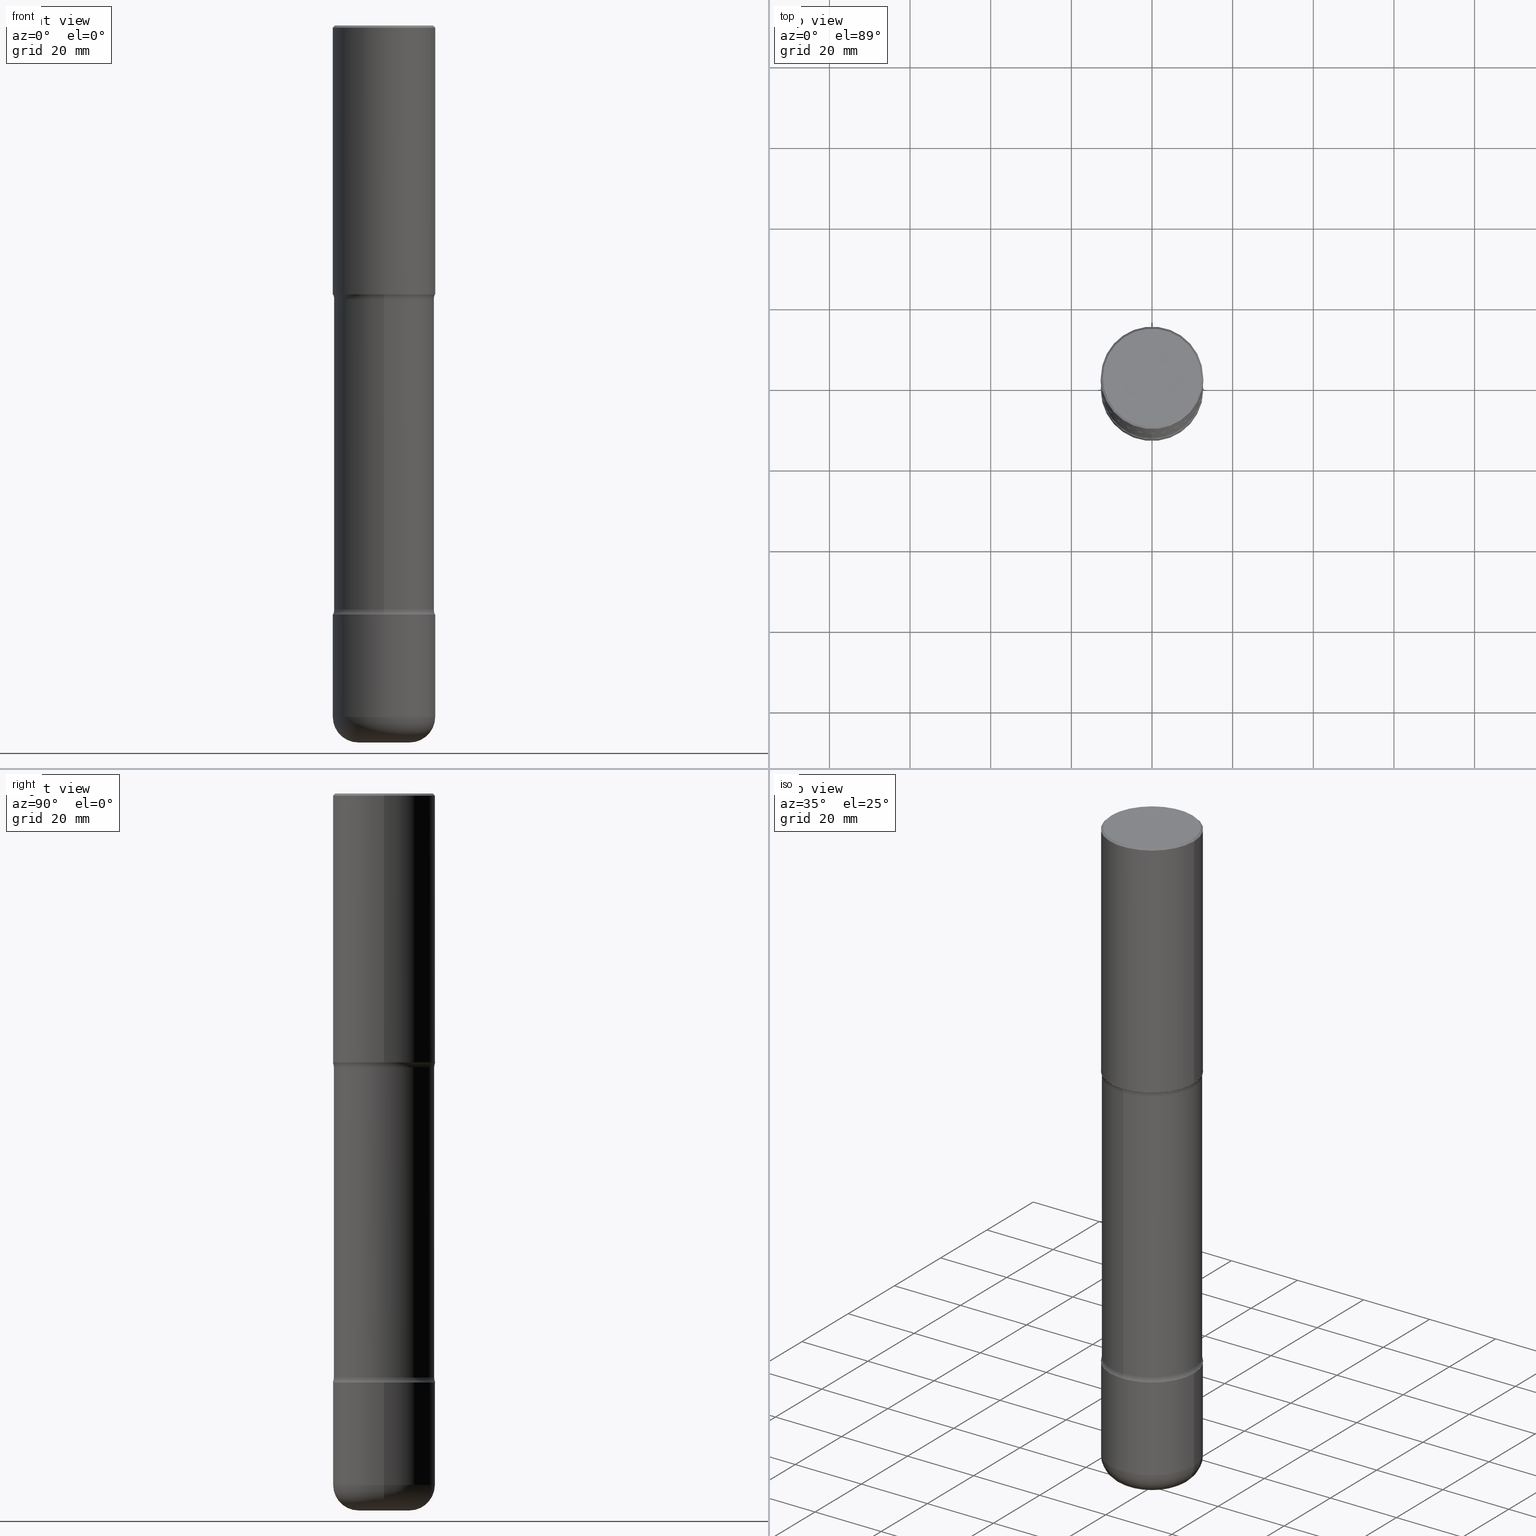
[diagram: canonical four-view strip — front | top / right | iso, engineering-drawing reading convention]
A machine part, canonical four-view strip (front | top / right | iso — engineering-drawing reading convention). The complete STEP part file that produces these views, byte-faithful:
ISO-10303-21;
HEADER;
FILE_DESCRIPTION (( 'STEP AP203' ),
    '1' );
FILE_NAME ('35818.STEP',
    '2024-03-01T23:35:28',
    ( '' ),
    ( '' ),
    'SwSTEP 2.0',
    'SolidWorks 2023',
    '' );
FILE_SCHEMA (( 'CONFIG_CONTROL_DESIGN' ));
ENDSEC;

DATA;
#1 = VERTEX_POINT ( 'NONE', #482 ) ;
#2 = CIRCLE ( 'NONE', #331, 0.1250000000000000278 ) ;
#3 = AXIS2_PLACEMENT_3D ( 'NONE', #88, #348, #85 ) ;
#4 = SHAPE_DEFINITION_REPRESENTATION ( #188, #206 ) ;
#5 = CARTESIAN_POINT ( 'NONE',  ( 1.711828164329595842E-28, -2.444036937190202499E-14, -7.000000000000001776 ) ) ;
#6 = EDGE_LOOP ( 'NONE', ( #405, #224, #31, #177 ) ) ;
#7 = DIRECTION ( 'NONE',  ( -2.445468806185136597E-29, 3.491481338843145583E-15, 1.000000000000000000 ) ) ;
#8 = EDGE_CURVE ( 'NONE', #248, #485, #484, .T. ) ;
#9 = DATE_AND_TIME ( #323, #413 ) ;
#10 = AXIS2_PLACEMENT_3D ( 'NONE', #498, #491, #451 ) ;
#11 = CIRCLE ( 'NONE', #478, 0.1250000000000000278 ) ;
#12 = CARTESIAN_POINT ( 'NONE',  ( -4.219206268629429970E-15, -0.6150000000000099831, -2.673989794855662794 ) ) ;
#13 = ADVANCED_FACE ( 'NONE', ( #445 ), #271, .T. ) ;
#14 = DIRECTION ( 'NONE',  ( -2.445468806185136597E-29, 3.491481338843145583E-15, 1.000000000000000000 ) ) ;
#15 = FACE_OUTER_BOUND ( 'NONE', #205, .T. ) ;
#16 = MANIFOLD_SOLID_BREP ( 'Body-Move/Copy2[4]', #28 ) ;
#17 = AXIS2_PLACEMENT_3D ( 'NONE', #311, #395, #480 ) ;
#18 = EDGE_CURVE ( 'NONE', #363, #181, #527, .T. ) ;
#19 = DIRECTION ( 'NONE',  ( 6.982962677686266711E-15, 1.000000000000000000, -4.460159989655937807E-15 ) ) ;
#20 = CARTESIAN_POINT ( 'NONE',  ( 3.491481338843199225E-15, 0.4999999999999911182, -2.625000000000001776 ) ) ;
#21 = ADVANCED_FACE ( 'NONE', ( #185 ), #231, .T. ) ;
#22 = ORIENTED_EDGE ( 'NONE', *, *, #298, .T. ) ;
#23 = CARTESIAN_POINT ( 'NONE',  ( 0.000000000000000000, 0.000000000000000000, 0.000000000000000000 ) ) ;
#24 = DIRECTION ( 'NONE',  ( -2.445468806185136877E-29, 3.491481338843145188E-15, 1.000000000000000000 ) ) ;
#25 = ORIENTED_EDGE ( 'NONE', *, *, #63, .F. ) ;
#26 = ORIENTED_EDGE ( 'NONE', *, *, #91, .T. ) ;
#27 = CIRCLE ( 'NONE', #42, 0.5000000000000004441 ) ;
#28 = CLOSED_SHELL ( 'NONE', ( #64, #483, #165, #522, #135, #54, #313, #55 ) ) ;
#29 = DIRECTION ( 'NONE',  ( 7.105427357601001859E-15, 1.000000000000000000, -3.491481338843145583E-15 ) ) ;
#30 = AXIS2_PLACEMENT_3D ( 'NONE', #168, #310, #300 ) ;
#31 = ORIENTED_EDGE ( 'NONE', *, *, #157, .F. ) ;
#32 = FACE_OUTER_BOUND ( 'NONE', #399, .T. ) ;
#33 = DIRECTION ( 'NONE',  ( -2.445468806185136877E-29, 3.491481338843145188E-15, 1.000000000000000000 ) ) ;
#34 = VERTEX_POINT ( 'NONE', #447 ) ;
#35 = PERSON_AND_ORGANIZATION_ROLE ( 'creator' ) ;
#36 = CARTESIAN_POINT ( 'NONE',  ( 0.5000000000000006661, -2.705898037603436870E-14, -6.750000000000000888 ) ) ;
#37 = EDGE_LOOP ( 'NONE', ( #250, #422, #431, #142 ) ) ;
#38 = ORIENTED_EDGE ( 'NONE', *, *, #277, .F. ) ;
#39 = PERSON_AND_ORGANIZATION ( #553, #386 ) ;
#40 = DIRECTION ( 'NONE',  ( 1.000000000000000000, -6.982962677686267499E-15, 0.000000000000000000 ) ) ;
#41 = DIRECTION ( 'NONE',  ( 2.521774376508615199E-29, -3.382207419096575054E-15, -1.000000000000000000 ) ) ;
#42 = AXIS2_PLACEMENT_3D ( 'NONE', #113, #152, #456 ) ;
#43 = ORIENTED_EDGE ( 'NONE', *, *, #126, .F. ) ;
#44 = TOROIDAL_SURFACE ( 'NONE', #426, 0.6150000000000003242, 0.1250000000000000555 ) ;
#45 = CYLINDRICAL_SURFACE ( 'NONE', #360, 0.5000000000000002220 ) ;
#46 = VERTEX_POINT ( 'NONE', #99 ) ;
#47 = CARTESIAN_POINT ( 'NONE',  ( 0.2500000000000005551, -2.531323970661280518E-14, -6.750000000000000888 ) ) ;
#48 = CARTESIAN_POINT ( 'NONE',  ( 0.000000000000000000, 0.000000000000000000, 0.000000000000000000 ) ) ;
#49 = EDGE_CURVE ( 'NONE', #181, #363, #183, .T. ) ;
#50 = VERTEX_POINT ( 'NONE', #134 ) ;
#51 = AXIS2_PLACEMENT_3D ( 'NONE', #106, #234, #455 ) ;
#52 = AXIS2_PLACEMENT_3D ( 'NONE', #520, #262, #444 ) ;
#53 = CARTESIAN_POINT ( 'NONE',  ( 1.711828164329595842E-28, -2.444036937190202499E-14, -7.000000000000001776 ) ) ;
#54 = ADVANCED_FACE ( 'NONE', ( #312 ), #285, .F. ) ;
#55 = ADVANCED_FACE ( 'NONE', ( #56 ), #417, .T. ) ;
#56 = FACE_OUTER_BOUND ( 'NONE', #380, .T. ) ;
#57 = APPROVAL_STATUS ( 'not_yet_approved' ) ;
#58 = CYLINDRICAL_SURFACE ( 'NONE', #145, 0.5000000000000004441 ) ;
#59 = COORDINATED_UNIVERSAL_TIME_OFFSET ( 5, 0, .BEHIND. ) ;
#60 = CIRCLE ( 'NONE', #273, 0.1249999999999999584 ) ;
#61 = CIRCLE ( 'NONE', #352, 0.5000000000000004441 ) ;
#62 = CARTESIAN_POINT ( 'NONE',  ( -0.5000000000000006661, -2.001478535839073126E-14, -6.750000000000000888 ) ) ;
#63 = EDGE_CURVE ( 'NONE', #50, #216, #332, .T. ) ;
#64 = ADVANCED_FACE ( 'NONE', ( #102 ), #199, .T. ) ;
#65 = ORIENTED_EDGE ( 'NONE', *, *, #410, .F. ) ;
#66 = PERSON_AND_ORGANIZATION ( #553, #386 ) ;
#67 = DIRECTION ( 'NONE',  ( 1.000000000000000000, -6.982962677686265133E-15, 4.883557194083112340E-29 ) ) ;
#68 = CC_DESIGN_PERSON_AND_ORGANIZATION_ASSIGNMENT ( #393, #259, ( #327 ) ) ;
#69 = DIRECTION ( 'NONE',  ( 6.982962677686265922E-15, 1.000000000000000000, -3.382207419096575054E-15 ) ) ;
#70 = AXIS2_PLACEMENT_3D ( 'NONE', #189, #143, #528 ) ;
#71 = CIRCLE ( 'NONE', #30, 0.5000000000000000000 ) ;
#72 = DIRECTION ( 'NONE',  ( -1.000000000000000000, 7.105427357601000281E-15, 0.000000000000000000 ) ) ;
#73 = ADVANCED_FACE ( 'NONE', ( #15 ), #227, .T. ) ;
#74 = DIRECTION ( 'NONE',  ( 1.000000000000000000, -6.982962677686265133E-15, 4.883557194083112340E-29 ) ) ;
#75 = EDGE_CURVE ( 'NONE', #201, #295, #238, .T. ) ;
#76 = ORIENTED_EDGE ( 'NONE', *, *, #261, .T. ) ;
#77 = COORDINATED_UNIVERSAL_TIME_OFFSET ( 5, 0, .BEHIND. ) ;
#78 = CARTESIAN_POINT ( 'NONE',  ( -0.5000000000000000000, 3.421651712066270057E-15, -0.02000000000000010797 ) ) ;
#79 = VERTEX_POINT ( 'NONE', #62 ) ;
#80 = ORIENTED_EDGE ( 'NONE', *, *, #63, .T. ) ;
#81 = APPROVAL_STATUS ( 'not_yet_approved' ) ;
#82 = AXIS2_PLACEMENT_3D ( 'NONE', #548, #394, #291 ) ;
#83 = CARTESIAN_POINT ( 'NONE',  ( 3.421651712066335533E-15, 0.4899999999999906097, -2.673989794855666347 ) ) ;
#84 = ORIENTED_EDGE ( 'NONE', *, *, #75, .T. ) ;
#85 = DIRECTION ( 'NONE',  ( 6.982962677686266711E-15, 1.000000000000000000, -4.460159989655937807E-15 ) ) ;
#86 = CARTESIAN_POINT ( 'NONE',  ( -0.2500000000000005551, -2.179114219779098172E-14, -6.750000000000000888 ) ) ;
#87 = ORIENTED_EDGE ( 'NONE', *, *, #371, .F. ) ;
#88 = CARTESIAN_POINT ( 'NONE',  ( 1.393790442618711164E-28, -1.991032405072724823E-14, -5.701010205144338094 ) ) ;
#89 = DIRECTION ( 'NONE',  ( 1.000000000000000000, -6.982962677686264344E-15, 0.000000000000000000 ) ) ;
#90 = EDGE_LOOP ( 'NONE', ( #526, #521, #322, #25 ) ) ;
#91 = EDGE_CURVE ( 'NONE', #325, #263, #161, .T. ) ;
#92 = FACE_OUTER_BOUND ( 'NONE', #324, .T. ) ;
#93 = VERTEX_POINT ( 'NONE', #232 ) ;
#94 = ORIENTED_EDGE ( 'NONE', *, *, #147, .T. ) ;
#95 = CARTESIAN_POINT ( 'NONE',  ( 1.406144563556453992E-28, -2.007601769834809568E-14, -5.750000000000001776 ) ) ;
#96 = ORIENTED_EDGE ( 'NONE', *, *, #226, .T. ) ;
#97 = ORIENTED_EDGE ( 'NONE', *, *, #298, .F. ) ;
#98 = EDGE_CURVE ( 'NONE', #46, #1, #128, .T. ) ;
#99 = CARTESIAN_POINT ( 'NONE',  ( -0.5000000000000004441, -1.064770391819553504E-15, -2.625000000000000000 ) ) ;
#100 = AXIS2_PLACEMENT_3D ( 'NONE', #104, #286, #278 ) ;
#101 = CONICAL_SURFACE ( 'NONE', #17, 0.5000000000000000000, 0.7853981633974467247 ) ;
#102 = FACE_OUTER_BOUND ( 'NONE', #37, .T. ) ;
#103 = DATE_TIME_ROLE ( 'classification_date' ) ;
#104 = CARTESIAN_POINT ( 'NONE',  ( -4.175405657340879278E-46, 5.961372681521788801E-32, 1.707404996040164512E-17 ) ) ;
#105 = DATE_AND_TIME ( #552, #140 ) ;
#106 = CARTESIAN_POINT ( 'NONE',  ( 1.721366360620030576E-28, -2.430377697221880819E-14, -7.000000000000000888 ) ) ;
#107 = AXIS2_PLACEMENT_3D ( 'NONE', #155, #336, #329 ) ;
#108 = ORIENTED_EDGE ( 'NONE', *, *, #8, .F. ) ;
#109 = DATE_AND_TIME ( #246, #440 ) ;
#110 = VECTOR ( 'NONE', #245, 39.37007874015748143 ) ;
#111 = DIRECTION ( 'NONE',  ( 6.860497997771532351E-15, 1.000000000000000000, 0.000000000000000000 ) ) ;
#112 = EDGE_CURVE ( 'NONE', #1, #46, #27, .T. ) ;
#113 = CARTESIAN_POINT ( 'NONE',  ( 6.419355616235983567E-29, -9.165138514463256612E-15, -2.625000000000000000 ) ) ;
#114 = CARTESIAN_POINT ( 'NONE',  ( 4.294522046777194602E-15, 0.6149999999999803402, -5.701010205144339871 ) ) ;
#115 = DIRECTION ( 'NONE',  ( 6.982962677686265922E-15, 1.000000000000000000, -3.382207419096575054E-15 ) ) ;
#116 = EDGE_CURVE ( 'NONE', #304, #402, #545, .T. ) ;
#117 = SECURITY_CLASSIFICATION ( '', '', #436 ) ;
#118 = DIRECTION ( 'NONE',  ( 6.982962677686265922E-15, 1.000000000000000000, -3.382207419096575054E-15 ) ) ;
#119 = ORIENTED_EDGE ( 'NONE', *, *, #122, .F. ) ;
#120 = CC_DESIGN_PERSON_AND_ORGANIZATION_ASSIGNMENT ( #39, #187, ( #117 ) ) ;
#121 = DIRECTION ( 'NONE',  ( 6.982962677686266711E-15, 1.000000000000000000, -4.460159989655937807E-15 ) ) ;
#122 = EDGE_CURVE ( 'NONE', #248, #201, #495, .T. ) ;
#123 = CARTESIAN_POINT ( 'NONE',  ( 0.5000000000000004441, -2.356749903719122903E-14, -5.750000000000001776 ) ) ;
#124 = CARTESIAN_POINT ( 'NONE',  ( 4.890937612370299433E-31, -6.982962677686328587E-17, -0.02000000000000010797 ) ) ;
#125 = PLANE ( 'NONE',  #427 ) ;
#126 = EDGE_CURVE ( 'NONE', #50, #93, #501, .T. ) ;
#127 = ORIENTED_EDGE ( 'NONE', *, *, #49, .F. ) ;
#128 = CIRCLE ( 'NONE', #281, 0.5000000000000004441 ) ;
#129 = DIRECTION ( 'NONE',  ( 6.982962677686266711E-15, 1.000000000000000000, -4.370956789862817205E-15 ) ) ;
#130 = ORIENTED_EDGE ( 'NONE', *, *, #261, .F. ) ;
#131 = ADVANCED_FACE ( 'NONE', ( #531 ), #58, .T. ) ;
#132 =( NAMED_UNIT ( * ) SI_UNIT ( $, .STERADIAN. ) SOLID_ANGLE_UNIT ( ) );
#133 = DIRECTION ( 'NONE',  ( 1.000000000000000000, -6.982962677686267499E-15, 4.876176775795936353E-29 ) ) ;
#134 = CARTESIAN_POINT ( 'NONE',  ( -0.4799999999999999267, 3.386736898677838802E-15, 1.707404996037808406E-17 ) ) ;
#135 = ADVANCED_FACE ( 'NONE', ( #194 ), #330, .F. ) ;
#136 = CARTESIAN_POINT ( 'NONE',  ( 4.890937612370299433E-31, -6.982962677686328587E-17, -0.02000000000000010797 ) ) ;
#137 = ORIENTED_EDGE ( 'NONE', *, *, #292, .T. ) ;
#138 = DIRECTION ( 'NONE',  ( -1.000000000000000000, 6.982962677686265922E-15, -4.876176775795935793E-29 ) ) ;
#139 = ORIENTED_EDGE ( 'NONE', *, *, #160, .T. ) ;
#140 = LOCAL_TIME ( 18, 35, 28.00000000000000000, #428 ) ;
#141 = CALENDAR_DATE ( 2024, 1, 3 ) ;
#142 = ORIENTED_EDGE ( 'NONE', *, *, #75, .F. ) ;
#143 = DIRECTION ( 'NONE',  ( -2.445468806185136597E-29, 3.491481338843145583E-15, 1.000000000000000000 ) ) ;
#144 = CARTESIAN_POINT ( 'NONE',  ( 0.000000000000000000, 0.000000000000000000, 0.000000000000000000 ) ) ;
#145 = AXIS2_PLACEMENT_3D ( 'NONE', #144, #149, #192 ) ;
#146 = VECTOR ( 'NONE', #502, 39.37007874015748143 ) ;
#147 = EDGE_CURVE ( 'NONE', #34, #471, #341, .T. ) ;
#148 = DIRECTION ( 'NONE',  ( 1.000000000000000000, -6.982962677686264344E-15, 0.000000000000000000 ) ) ;
#149 = DIRECTION ( 'NONE',  ( -2.445468806185136597E-29, 3.491481338843145583E-15, 1.000000000000000000 ) ) ;
#150 = ORIENTED_EDGE ( 'NONE', *, *, #345, .T. ) ;
#151 = EDGE_CURVE ( 'NONE', #248, #402, #2, .T. ) ;
#152 = DIRECTION ( 'NONE',  ( -2.445468806185136597E-29, 3.491481338843145583E-15, 1.000000000000000000 ) ) ;
#153 = AXIS2_PLACEMENT_3D ( 'NONE', #247, #425, #118 ) ;
#154 = AXIS2_PLACEMENT_3D ( 'NONE', #314, #180, #138 ) ;
#155 = CARTESIAN_POINT ( 'NONE',  ( 6.180900708975112969E-29, -9.506619513671289169E-15, -2.625000000000000000 ) ) ;
#156 = DIRECTION ( 'NONE',  ( -2.445468806185136597E-29, 3.491481338843145583E-15, 1.000000000000000000 ) ) ;
#157 = EDGE_CURVE ( 'NONE', #508, #79, #197, .T. ) ;
#158 = FACE_OUTER_BOUND ( 'NONE', #90, .T. ) ;
#159 = DIRECTION ( 'NONE',  ( 2.438088387897960049E-29, -3.491481338843145188E-15, -1.000000000000000000 ) ) ;
#160 = EDGE_CURVE ( 'NONE', #46, #216, #433, .T. ) ;
#161 = CIRCLE ( 'NONE', #350, 0.5000000000000004441 ) ;
#162 = CIRCLE ( 'NONE', #209, 0.5000000000000004441 ) ;
#163 = CARTESIAN_POINT ( 'NONE',  ( 0.2500000000000005551, -2.618611004132359483E-14, -7.000000000000001776 ) ) ;
#164 = PERSON_AND_ORGANIZATION ( #553, #386 ) ;
#165 = ADVANCED_FACE ( 'NONE', ( #204 ), #516, .F. ) ;
#166 = DIRECTION ( 'NONE',  ( -2.445468806185136597E-29, 3.491481338843145583E-15, 1.000000000000000000 ) ) ;
#167 = ORIENTED_EDGE ( 'NONE', *, *, #112, .F. ) ;
#168 = CARTESIAN_POINT ( 'NONE',  ( 4.890937612370299433E-31, -6.982962677686328587E-17, -0.02000000000000010797 ) ) ;
#169 = CC_DESIGN_DATE_AND_TIME_ASSIGNMENT ( #236, #240, ( #510 ) ) ;
#170 = DIRECTION ( 'NONE',  ( 1.000000000000000000, -6.982962677686266711E-15, 4.876431871984414276E-29 ) ) ;
#171 = ORIENTED_EDGE ( 'NONE', *, *, #157, .T. ) ;
#172 = CARTESIAN_POINT ( 'NONE',  ( 6.300703724116049191E-29, -9.677666468203598037E-15, -2.673989794855665014 ) ) ;
#173 = AXIS2_PLACEMENT_3D ( 'NONE', #86, #29, #72 ) ;
#174 = APPROVAL_PERSON_ORGANIZATION ( #164, #239, #252 ) ;
#175 = DIRECTION ( 'NONE',  ( 1.000000000000000000, -6.982962677686266711E-15, 0.000000000000000000 ) ) ;
#176 = CARTESIAN_POINT ( 'NONE',  ( -3.430248998885628125E-15, -0.5000000000000204281, -5.750000000000000000 ) ) ;
#177 = ORIENTED_EDGE ( 'NONE', *, *, #472, .F. ) ;
#178 = EDGE_CURVE ( 'NONE', #34, #295, #60, .T. ) ;
#179 = EDGE_CURVE ( 'NONE', #363, #79, #418, .T. ) ;
#180 = DIRECTION ( 'NONE',  ( 2.438088387897960049E-29, -3.491481338843145188E-15, -1.000000000000000000 ) ) ;
#181 = VERTEX_POINT ( 'NONE', #163 ) ;
#182 = ORIENTED_EDGE ( 'NONE', *, *, #147, .F. ) ;
#183 = CIRCLE ( 'NONE', #477, 0.2500000000000005551 ) ;
#184 = AXIS2_PLACEMENT_3D ( 'NONE', #509, #514, #500 ) ;
#185 = FACE_OUTER_BOUND ( 'NONE', #474, .T. ) ;
#186 = DIMENSIONAL_EXPONENTS ( 1.000000000000000000, 0.000000000000000000, 0.000000000000000000, 0.000000000000000000, 0.000000000000000000, 0.000000000000000000, 0.000000000000000000 ) ;
#187 = PERSON_AND_ORGANIZATION_ROLE ( 'classification_officer' ) ;
#188 = PRODUCT_DEFINITION_SHAPE ( 'NONE', 'NONE',  #510 ) ;
#189 = CARTESIAN_POINT ( 'NONE',  ( 0.000000000000000000, 0.000000000000000000, 0.000000000000000000 ) ) ;
#190 = ORIENTED_EDGE ( 'NONE', *, *, #249, .T. ) ;
#191 = LOCAL_TIME ( 18, 35, 28.00000000000000000, #490 ) ;
#192 = DIRECTION ( 'NONE',  ( 1.000000000000000000, -6.982962677686266711E-15, 4.876176775795935232E-29 ) ) ;
#193 = EDGE_CURVE ( 'NONE', #471, #485, #487, .T. ) ;
#194 = FACE_OUTER_BOUND ( 'NONE', #529, .T. ) ;
#195 = ADVANCED_FACE ( 'NONE', ( #337 ), #242, .T. ) ;
#196 = DIRECTION ( 'NONE',  ( 2.521774376508615199E-29, -3.382207419096575054E-15, -1.000000000000000000 ) ) ;
#197 = CIRCLE ( 'NONE', #404, 0.5000000000000004441 ) ;
#198 = AXIS2_PLACEMENT_3D ( 'NONE', #349, #156, #294 ) ;
#199 = CYLINDRICAL_SURFACE ( 'NONE', #51, 0.4900000000000002132 ) ;
#200 = FACE_OUTER_BOUND ( 'NONE', #340, .T. ) ;
#201 = VERTEX_POINT ( 'NONE', #83 ) ;
#202 = DIRECTION ( 'NONE',  ( 0.000000000000000000, 0.000000000000000000, 1.000000000000000000 ) ) ;
#203 = MANIFOLD_SOLID_BREP ( 'Body-Move/Copy2[2]', #452 ) ;
#204 = FACE_OUTER_BOUND ( 'NONE', #513, .T. ) ;
#205 = EDGE_LOOP ( 'NONE', ( #334, #443, #463, #385 ) ) ;
#206 = ADVANCED_BREP_SHAPE_REPRESENTATION ( '35818', ( #392, #203, #16, #466 ), #374 ) ;
#207 = PERSON_AND_ORGANIZATION ( #553, #386 ) ;
#208 = CLOSED_SHELL ( 'NONE', ( #13, #195, #222, #73, #131, #467 ) ) ;
#209 = AXIS2_PLACEMENT_3D ( 'NONE', #95, #269, #89 ) ;
#210 = FACE_OUTER_BOUND ( 'NONE', #347, .T. ) ;
#211 = PRODUCT_RELATED_PRODUCT_CATEGORY ( 'detail', '', ( #408 ) ) ;
#212 = DIRECTION ( 'NONE',  ( 1.000000000000000000, 0.000000000000000000, 0.000000000000000000 ) ) ;
#213 = LINE ( 'NONE', #377, #110 ) ;
#214 = PLANE ( 'NONE',  #52 ) ;
#215 = EDGE_LOOP ( 'NONE', ( #504, #137, #22, #435 ) ) ;
#216 = VERTEX_POINT ( 'NONE', #78 ) ;
#217 = DIRECTION ( 'NONE',  ( -1.000000000000000000, 6.982962677686266711E-15, 0.000000000000000000 ) ) ;
#218 = CC_DESIGN_PERSON_AND_ORGANIZATION_ASSIGNMENT ( #400, #492, ( #510 ) ) ;
#219 = VECTOR ( 'NONE', #511, 39.37007874015748143 ) ;
#220 = FACE_OUTER_BOUND ( 'NONE', #551, .T. ) ;
#221 = ORIENTED_EDGE ( 'NONE', *, *, #272, .F. ) ;
#222 = ADVANCED_FACE ( 'NONE', ( #210 ), #389, .T. ) ;
#223 = FACE_OUTER_BOUND ( 'NONE', #505, .T. ) ;
#224 = ORIENTED_EDGE ( 'NONE', *, *, #179, .T. ) ;
#225 = DIRECTION ( 'NONE',  ( 1.000000000000000000, -6.982962677686266711E-15, 4.876176775795935232E-29 ) ) ;
#226 = EDGE_CURVE ( 'NONE', #79, #325, #549, .T. ) ;
#227 = TOROIDAL_SURFACE ( 'NONE', #372, 0.2500000000000005551, 0.2500000000000003331 ) ;
#228 = TOROIDAL_SURFACE ( 'NONE', #519, 0.6150000000000003242, 0.1249999999999999584 ) ;
#229 = ORIENTED_EDGE ( 'NONE', *, *, #193, .T. ) ;
#230 = CC_DESIGN_PERSON_AND_ORGANIZATION_ASSIGNMENT ( #66, #35, ( #327 ) ) ;
#231 = CYLINDRICAL_SURFACE ( 'NONE', #70, 0.5000000000000002220 ) ;
#232 = CARTESIAN_POINT ( 'NONE',  ( 0.4799999999999999267, -3.396558832296482099E-15, 1.707404996042524007E-17 ) ) ;
#233 = CALENDAR_DATE ( 2024, 1, 3 ) ;
#234 = DIRECTION ( 'NONE',  ( 2.521774376508615199E-29, -3.382207419096575054E-15, -1.000000000000000000 ) ) ;
#235 = AXIS2_PLACEMENT_3D ( 'NONE', #462, #166, #170 ) ;
#236 = DATE_AND_TIME ( #233, #556 ) ;
#237 = DIRECTION ( 'NONE',  ( 1.000000000000000000, -6.982962677686268288E-15, 0.000000000000000000 ) ) ;
#238 = LINE ( 'NONE', #276, #384 ) ;
#239 = APPROVAL ( #81, 'UNSPECIFIED' ) ;
#240 = DATE_TIME_ROLE ( 'creation_date' ) ;
#241 = CARTESIAN_POINT ( 'NONE',  ( 1.406144563556453992E-28, -2.007601769834809568E-14, -5.750000000000001776 ) ) ;
#242 = TOROIDAL_SURFACE ( 'NONE', #458, 0.2500000000000005551, 0.2500000000000003331 ) ;
#243 = CIRCLE ( 'NONE', #235, 0.4799999999999999267 ) ;
#244 = DIRECTION ( 'NONE',  ( 1.000000000000000000, -6.982962677686265922E-15, 4.876176775795935793E-29 ) ) ;
#245 = DIRECTION ( 'NONE',  ( -2.445468806185136877E-29, 3.491481338843145188E-15, 1.000000000000000000 ) ) ;
#246 = CALENDAR_DATE ( 2024, 1, 3 ) ;
#247 = CARTESIAN_POINT ( 'NONE',  ( 6.300703724116049191E-29, -9.677666468203598037E-15, -2.673989794855665014 ) ) ;
#248 = VERTEX_POINT ( 'NONE', #507 ) ;
#249 = EDGE_CURVE ( 'NONE', #1, #375, #213, .T. ) ;
#250 = ORIENTED_EDGE ( 'NONE', *, *, #540, .T. ) ;
#251 = AXIS2_PLACEMENT_3D ( 'NONE', #241, #414, #370 ) ;
#252 = APPROVAL_ROLE ( '' ) ;
#253 = DIRECTION ( 'NONE',  ( 2.521774376508615199E-29, -3.382207419096575054E-15, -1.000000000000000000 ) ) ;
#254 = APPLICATION_CONTEXT ( 'configuration controlled 3d designs of mechanical parts and assemblies' ) ;
#255 = ORIENTED_EDGE ( 'NONE', *, *, #249, .F. ) ;
#256 = ORIENTED_EDGE ( 'NONE', *, *, #151, .T. ) ;
#257 = DIRECTION ( 'NONE',  ( -6.982962677686265133E-15, -1.000000000000000000, 0.000000000000000000 ) ) ;
#258 = EDGE_LOOP ( 'NONE', ( #130, #229, #315, #424 ) ) ;
#259 = PERSON_AND_ORGANIZATION_ROLE ( 'design_supplier' ) ;
#260 = CARTESIAN_POINT ( 'NONE',  ( 1.393790442618711164E-28, -1.991032405072724823E-14, -5.701010205144338094 ) ) ;
#261 = EDGE_CURVE ( 'NONE', #471, #34, #61, .T. ) ;
#262 = DIRECTION ( 'NONE',  ( 2.438088387897960049E-29, -3.491481338843145188E-15, -1.000000000000000000 ) ) ;
#263 = VERTEX_POINT ( 'NONE', #123 ) ;
#264 = VECTOR ( 'NONE', #538, 39.37007874015748143 ) ;
#265 = APPROVAL_PERSON_ORGANIZATION ( #446, #321, #411 ) ;
#266 = CARTESIAN_POINT ( 'NONE',  ( -0.2500000000000005551, -2.133939894544624974E-14, -7.000000000000001776 ) ) ;
#267 = ORIENTED_EDGE ( 'NONE', *, *, #122, .T. ) ;
#268 = UNCERTAINTY_MEASURE_WITH_UNIT (LENGTH_MEASURE( 1.000000000000000082E-05 ), #338, 'distance_accuracy_value', 'NONE');
#269 = DIRECTION ( 'NONE',  ( -2.445468806185136597E-29, 3.491481338843145583E-15, 1.000000000000000000 ) ) ;
#270 = DIRECTION ( 'NONE',  ( 2.521774376508615199E-29, -3.382207419096575054E-15, -1.000000000000000000 ) ) ;
#271 = CYLINDRICAL_SURFACE ( 'NONE', #439, 0.5000000000000004441 ) ;
#272 = EDGE_CURVE ( 'NONE', #93, #375, #339, .T. ) ;
#273 = AXIS2_PLACEMENT_3D ( 'NONE', #114, #464, #257 ) ;
#274 = AXIS2_PLACEMENT_3D ( 'NONE', #136, #473, #175 ) ;
#275 = CARTESIAN_POINT ( 'NONE',  ( -3.361644018907879661E-15, -0.4900000000000245270, -6.999999999999998224 ) ) ;
#276 = CARTESIAN_POINT ( 'NONE',  ( 3.421651712066444395E-15, 0.4899999999999758993, -7.000000000000002665 ) ) ;
#277 = EDGE_CURVE ( 'NONE', #201, #304, #11, .T. ) ;
#278 = DIRECTION ( 'NONE',  ( 1.000000000000000000, -6.982962677686266711E-15, 4.876431871984414276E-29 ) ) ;
#279 = DIRECTION ( 'NONE',  ( -2.445468806185136597E-29, 3.491481338843145583E-15, 1.000000000000000000 ) ) ;
#280 = EDGE_CURVE ( 'NONE', #93, #50, #243, .T. ) ;
#281 = AXIS2_PLACEMENT_3D ( 'NONE', #497, #7, #237 ) ;
#282 = CIRCLE ( 'NONE', #420, 0.5000000000000005551 ) ;
#283 = ORIENTED_EDGE ( 'NONE', *, *, #481, .F. ) ;
#284 = APPROVAL_DATE_TIME ( #109, #335 ) ;
#285 = PLANE ( 'NONE',  #412 ) ;
#286 = DIRECTION ( 'NONE',  ( -2.445468806185136597E-29, 3.491481338843145583E-15, 1.000000000000000000 ) ) ;
#287 = APPROVAL_ROLE ( '' ) ;
#288 = CARTESIAN_POINT ( 'NONE',  ( 0.5000000000000000000, -3.500078625662629079E-15, -0.02000000000000010797 ) ) ;
#289 = AXIS2_PLACEMENT_3D ( 'NONE', #308, #383, #541 ) ;
#290 = CIRCLE ( 'NONE', #547, 0.4900000000000002132 ) ;
#291 = DIRECTION ( 'NONE',  ( 6.982962677686265922E-15, 1.000000000000000000, -3.382207419096575054E-15 ) ) ;
#292 = EDGE_CURVE ( 'NONE', #79, #508, #453, .T. ) ;
#293 = APPLICATION_CONTEXT ( 'configuration controlled 3d designs of mechanical parts and assemblies' ) ;
#294 = DIRECTION ( 'NONE',  ( 1.000000000000000000, -6.982962677686264344E-15, 0.000000000000000000 ) ) ;
#295 = VERTEX_POINT ( 'NONE', #499 ) ;
#296 = FACE_OUTER_BOUND ( 'NONE', #258, .T. ) ;
#297 = CARTESIAN_POINT ( 'NONE',  ( 4.294522046777118082E-15, 0.6149999999999905542, -2.673989794855666791 ) ) ;
#298 = EDGE_CURVE ( 'NONE', #508, #263, #421, .T. ) ;
#299 = EDGE_LOOP ( 'NONE', ( #94, #76 ) ) ;
#300 = DIRECTION ( 'NONE',  ( 1.000000000000000000, -6.982962677686266711E-15, 0.000000000000000000 ) ) ;
#301 = CARTESIAN_POINT ( 'NONE',  ( 6.419355616235983567E-29, -9.165138514463256612E-15, -2.625000000000000000 ) ) ;
#302 = ADVANCED_FACE ( 'NONE', ( #459 ), #125, .F. ) ;
#303 = ORIENTED_EDGE ( 'NONE', *, *, #126, .T. ) ;
#304 = VERTEX_POINT ( 'NONE', #20 ) ;
#305 = AXIS2_PLACEMENT_3D ( 'NONE', #454, #409, #19 ) ;
#306 =( NAMED_UNIT ( * ) PLANE_ANGLE_UNIT ( ) SI_UNIT ( $, .RADIAN. ) );
#307 = AXIS2_PLACEMENT_3D ( 'NONE', #47, #523, #40 ) ;
#308 = CARTESIAN_POINT ( 'NONE',  ( -4.219206268629354239E-15, -0.6150000000000201972, -5.701010205144335430 ) ) ;
#309 = ORIENTED_EDGE ( 'NONE', *, *, #280, .T. ) ;
#310 = DIRECTION ( 'NONE',  ( -2.445468806185136597E-29, 3.491481338843145583E-15, 1.000000000000000000 ) ) ;
#311 = CARTESIAN_POINT ( 'NONE',  ( 4.890937612370299433E-31, -6.982962677686328587E-17, -0.02000000000000010797 ) ) ;
#312 = FACE_OUTER_BOUND ( 'NONE', #299, .T. ) ;
#313 = ADVANCED_FACE ( 'NONE', ( #200 ), #228, .F. ) ;
#314 = CARTESIAN_POINT ( 'NONE',  ( 3.351822085289407153E-15, 0.4799999999999999267, -1.667374017664508837E-15 ) ) ;
#315 = ORIENTED_EDGE ( 'NONE', *, *, #517, .T. ) ;
#316 = VECTOR ( 'NONE', #24, 39.37007874015748143 ) ;
#317 = AXIS2_PLACEMENT_3D ( 'NONE', #124, #554, #217 ) ;
#318 = CARTESIAN_POINT ( 'NONE',  ( -3.430248998885707800E-15, -0.5000000000000102141, -2.624999999999998224 ) ) ;
#319 = CC_DESIGN_APPROVAL ( #321, ( #117 ) ) ;
#320 = ORIENTED_EDGE ( 'NONE', *, *, #98, .T. ) ;
#321 = APPROVAL ( #57, 'UNSPECIFIED' ) ;
#322 = ORIENTED_EDGE ( 'NONE', *, *, #481, .T. ) ;
#323 = CALENDAR_DATE ( 2024, 1, 3 ) ;
#324 = EDGE_LOOP ( 'NONE', ( #303, #309 ) ) ;
#325 = VERTEX_POINT ( 'NONE', #401 ) ;
#326 = VECTOR ( 'NONE', #33, 39.37007874015748143 ) ;
#327 = PRODUCT_DEFINITION_FORMATION_WITH_SPECIFIED_SOURCE ( 'ANY', '', #408, .NOT_KNOWN. ) ;
#328 = DIRECTION ( 'NONE',  ( 2.521774376508614919E-29, -3.382207419096575054E-15, -1.000000000000000000 ) ) ;
#329 = DIRECTION ( 'NONE',  ( 6.982962677686266711E-15, 1.000000000000000000, -3.278217592397112312E-15 ) ) ;
#330 = PLANE ( 'NONE',  #448 ) ;
#331 = AXIS2_PLACEMENT_3D ( 'NONE', #12, #368, #111 ) ;
#332 = LINE ( 'NONE', #489, #264 ) ;
#333 = CIRCLE ( 'NONE', #184, 0.4900000000000003242 ) ;
#334 = ORIENTED_EDGE ( 'NONE', *, *, #179, .F. ) ;
#335 = APPROVAL ( #381, 'UNSPECIFIED' ) ;
#336 = DIRECTION ( 'NONE',  ( 2.521774376508615199E-29, -3.382207419096575054E-15, -1.000000000000000000 ) ) ;
#337 = FACE_OUTER_BOUND ( 'NONE', #6, .T. ) ;
#338 =( CONVERSION_BASED_UNIT ( 'INCH', #432 ) LENGTH_UNIT ( ) NAMED_UNIT ( #186 ) );
#339 = LINE ( 'NONE', #288, #146 ) ;
#340 = EDGE_LOOP ( 'NONE', ( #476, #182, #512, #357 ) ) ;
#341 = CIRCLE ( 'NONE', #251, 0.5000000000000004441 ) ;
#342 = CONICAL_SURFACE ( 'NONE', #317, 0.5000000000000000000, 0.7853981633974467247 ) ;
#343 = ADVANCED_FACE ( 'NONE', ( #559 ), #101, .T. ) ;
#344 = DIRECTION ( 'NONE',  ( -1.000000000000000000, 6.982962677686265922E-15, -4.876176775795935793E-29 ) ) ;
#345 = EDGE_CURVE ( 'NONE', #216, #375, #532, .T. ) ;
#346 = CARTESIAN_POINT ( 'NONE',  ( 0.5000000000000004441, -3.491481338843136511E-15, 2.438088387897969858E-29 ) ) ;
#347 = EDGE_LOOP ( 'NONE', ( #127, #543 ) ) ;
#348 = DIRECTION ( 'NONE',  ( 2.521774376508615199E-29, -3.382207419096575054E-15, -1.000000000000000000 ) ) ;
#349 = CARTESIAN_POINT ( 'NONE',  ( 1.650691444174967427E-28, -2.356749903719123535E-14, -6.750000000000000888 ) ) ;
#350 = AXIS2_PLACEMENT_3D ( 'NONE', #450, #14, #148 ) ;
#351 = DIRECTION ( 'NONE',  ( 2.521774376508615199E-29, -3.382207419096575054E-15, -1.000000000000000000 ) ) ;
#352 = AXIS2_PLACEMENT_3D ( 'NONE', #515, #253, #129 ) ;
#353 = DIRECTION ( 'NONE',  ( 6.982962677686266711E-15, 1.000000000000000000, -3.278217592397112312E-15 ) ) ;
#354 = CARTESIAN_POINT ( 'NONE',  ( 0.000000000000000000, 0.000000000000000000, 0.000000000000000000 ) ) ;
#355 = EDGE_LOOP ( 'NONE', ( #167, #438 ) ) ;
#356 = CARTESIAN_POINT ( 'NONE',  ( 0.5000000000000000000, -3.500078625662629079E-15, -0.02000000000000010797 ) ) ;
#357 = ORIENTED_EDGE ( 'NONE', *, *, #493, .T. ) ;
#358 = CC_DESIGN_PERSON_AND_ORGANIZATION_ASSIGNMENT ( #207, #506, ( #408 ) ) ;
#359 = AXIS2_PLACEMENT_3D ( 'NONE', #5, #361, #449 ) ;
#360 = AXIS2_PLACEMENT_3D ( 'NONE', #354, #525, #133 ) ;
#361 = DIRECTION ( 'NONE',  ( -2.445468806185136597E-29, 3.491481338843145583E-15, 1.000000000000000000 ) ) ;
#362 = DESIGN_CONTEXT ( 'detailed design', #254, 'design' ) ;
#363 = VERTEX_POINT ( 'NONE', #266 ) ;
#364 = DIRECTION ( 'NONE',  ( 1.000000000000000000, -6.982962677686262766E-15, 0.000000000000000000 ) ) ;
#365 = VECTOR ( 'NONE', #270, 39.37007874015748143 ) ;
#366 = APPROVAL_PERSON_ORGANIZATION ( #457, #335, #287 ) ;
#367 = CARTESIAN_POINT ( 'NONE',  ( 1.650691444174967427E-28, -2.356749903719123535E-14, -6.750000000000000888 ) ) ;
#368 = DIRECTION ( 'NONE',  ( 1.000000000000000000, -6.860497997771530774E-15, 4.842137099184622167E-29 ) ) ;
#369 = EDGE_LOOP ( 'NONE', ( #221, #43, #80, #150 ) ) ;
#370 = DIRECTION ( 'NONE',  ( 6.982962677686266711E-15, 1.000000000000000000, -4.370956789862817205E-15 ) ) ;
#371 = EDGE_CURVE ( 'NONE', #402, #304, #282, .T. ) ;
#372 = AXIS2_PLACEMENT_3D ( 'NONE', #367, #533, #67 ) ;
#373 = DIRECTION ( 'NONE',  ( -2.521774376508614919E-29, 3.382207419096575054E-15, 1.000000000000000000 ) ) ;
#374 =( GEOMETRIC_REPRESENTATION_CONTEXT ( 3 ) GLOBAL_UNCERTAINTY_ASSIGNED_CONTEXT ( ( #268 ) ) GLOBAL_UNIT_ASSIGNED_CONTEXT ( ( #338, #306, #132 ) ) REPRESENTATION_CONTEXT ( 'NONE', 'WORKASPACE' ) );
#375 = VERTEX_POINT ( 'NONE', #356 ) ;
#376 = APPROVAL_DATE_TIME ( #105, #239 ) ;
#377 = CARTESIAN_POINT ( 'NONE',  ( 0.5000000000000002220, -3.491481338843135327E-15, 2.438088387897969298E-29 ) ) ;
#378 = ADVANCED_FACE ( 'NONE', ( #223 ), #45, .T. ) ;
#379 = DIRECTION ( 'NONE',  ( -2.445468806185136597E-29, 3.491481338843145583E-15, 1.000000000000000000 ) ) ;
#380 = EDGE_LOOP ( 'NONE', ( #108, #267, #84, #560 ) ) ;
#381 = APPROVAL_STATUS ( 'not_yet_approved' ) ;
#382 = APPLICATION_PROTOCOL_DEFINITION ( 'international standard', 'config_control_design', 1994, #293 ) ;
#383 = DIRECTION ( 'NONE',  ( 1.000000000000000000, -6.860497997771530774E-15, 4.842137099184622167E-29 ) ) ;
#384 = VECTOR ( 'NONE', #196, 39.37007874015748143 ) ;
#385 = ORIENTED_EDGE ( 'NONE', *, *, #292, .F. ) ;
#386 = ORGANIZATION ( 'UNSPECIFIED', 'UNSPECIFIED', '' ) ;
#387 = ADVANCED_FACE ( 'NONE', ( #92 ), #442, .F. ) ;
#388 = CARTESIAN_POINT ( 'NONE',  ( -3.395946508896770262E-15, -0.4900000000000201972, -5.701010205144335430 ) ) ;
#389 = PLANE ( 'NONE',  #555 ) ;
#390 = APPLICATION_PROTOCOL_DEFINITION ( 'international standard', 'config_control_design', 1994, #254 ) ;
#391 = DIRECTION ( 'NONE',  ( -1.000000000000000000, 6.982962677686265922E-15, -4.883557194083112340E-29 ) ) ;
#392 = MANIFOLD_SOLID_BREP ( 'Body-Move/Copy2[1]', #208 ) ;
#393 = PERSON_AND_ORGANIZATION ( #553, #386 ) ;
#394 = DIRECTION ( 'NONE',  ( 2.521774376508615199E-29, -3.382207419096575054E-15, -1.000000000000000000 ) ) ;
#395 = DIRECTION ( 'NONE',  ( 2.445468806185136597E-29, -3.491481338843145583E-15, -1.000000000000000000 ) ) ;
#396 = DIRECTION ( 'NONE',  ( 2.521774376508615199E-29, -3.382207419096575054E-15, -1.000000000000000000 ) ) ;
#397 = CC_DESIGN_APPROVAL ( #335, ( #327 ) ) ;
#398 = DIRECTION ( 'NONE',  ( 2.521774376508615199E-29, -3.382207419096575054E-15, -1.000000000000000000 ) ) ;
#399 = EDGE_LOOP ( 'NONE', ( #470, #558, #434, #468 ) ) ;
#400 = PERSON_AND_ORGANIZATION ( #553, #386 ) ;
#401 = CARTESIAN_POINT ( 'NONE',  ( -0.5000000000000005551, -1.826904468896916143E-14, -5.750000000000001776 ) ) ;
#402 = VERTEX_POINT ( 'NONE', #318 ) ;
#403 = DIRECTION ( 'NONE',  ( -2.445468806185136597E-29, 3.491481338843145583E-15, 1.000000000000000000 ) ) ;
#404 = AXIS2_PLACEMENT_3D ( 'NONE', #535, #279, #416 ) ;
#405 = ORIENTED_EDGE ( 'NONE', *, *, #49, .T. ) ;
#406 = DIRECTION ( 'NONE',  ( -2.445468806185136597E-29, 3.491481338843145583E-15, 1.000000000000000000 ) ) ;
#407 = APPROVAL_DATE_TIME ( #9, #321 ) ;
#408 = PRODUCT ( '35818', '35818', '', ( #544 ) ) ;
#409 = DIRECTION ( 'NONE',  ( 2.521774376508615199E-29, -3.382207419096575054E-15, -1.000000000000000000 ) ) ;
#410 = EDGE_CURVE ( 'NONE', #263, #325, #162, .T. ) ;
#411 = APPROVAL_ROLE ( '' ) ;
#412 = AXIS2_PLACEMENT_3D ( 'NONE', #494, #373, #419 ) ;
#413 = LOCAL_TIME ( 18, 35, 28.00000000000000000, #59 ) ;
#414 = DIRECTION ( 'NONE',  ( 2.521774376508615199E-29, -3.382207419096575054E-15, -1.000000000000000000 ) ) ;
#415 = EDGE_LOOP ( 'NONE', ( #171, #96, #65, #97 ) ) ;
#416 = DIRECTION ( 'NONE',  ( 1.000000000000000000, -6.982962677686264344E-15, 0.000000000000000000 ) ) ;
#417 = CYLINDRICAL_SURFACE ( 'NONE', #305, 0.4900000000000002132 ) ;
#418 = CIRCLE ( 'NONE', #173, 0.2500000000000003886 ) ;
#419 = DIRECTION ( 'NONE',  ( -6.982962677686265922E-15, -1.000000000000000000, 3.382207419096575054E-15 ) ) ;
#420 = AXIS2_PLACEMENT_3D ( 'NONE', #557, #41, #353 ) ;
#421 = LINE ( 'NONE', #346, #219 ) ;
#422 = ORIENTED_EDGE ( 'NONE', *, *, #8, .T. ) ;
#423 = DIRECTION ( 'NONE',  ( -2.438088387897960049E-29, 3.491481338843145188E-15, 1.000000000000000000 ) ) ;
#424 = ORIENTED_EDGE ( 'NONE', *, *, #178, .F. ) ;
#425 = DIRECTION ( 'NONE',  ( 2.521774376508615199E-29, -3.382207419096575054E-15, -1.000000000000000000 ) ) ;
#426 = AXIS2_PLACEMENT_3D ( 'NONE', #172, #351, #115 ) ;
#427 = AXIS2_PLACEMENT_3D ( 'NONE', #301, #423, #244 ) ;
#428 = COORDINATED_UNIVERSAL_TIME_OFFSET ( 5, 0, .BEHIND. ) ;
#429 = CARTESIAN_POINT ( 'NONE',  ( -0.5000000000000002220, 3.552713678800502507E-15, -2.459467545127454292E-29 ) ) ;
#430 = ORIENTED_EDGE ( 'NONE', *, *, #371, .T. ) ;
#431 = ORIENTED_EDGE ( 'NONE', *, *, #493, .F. ) ;
#432 = LENGTH_MEASURE_WITH_UNIT ( LENGTH_MEASURE( 0.02539999999999999897 ), #460 );
#433 = LINE ( 'NONE', #429, #316 ) ;
#434 = ORIENTED_EDGE ( 'NONE', *, *, #277, .T. ) ;
#435 = ORIENTED_EDGE ( 'NONE', *, *, #91, .F. ) ;
#436 = SECURITY_CLASSIFICATION_LEVEL ( 'unclassified' ) ;
#437 = CARTESIAN_POINT ( 'NONE',  ( 1.394164262042360481E-28, -1.990497074381578997E-14, -5.701010205144338094 ) ) ;
#438 = ORIENTED_EDGE ( 'NONE', *, *, #98, .F. ) ;
#439 = AXIS2_PLACEMENT_3D ( 'NONE', #48, #403, #225 ) ;
#440 = LOCAL_TIME ( 18, 35, 28.00000000000000000, #77 ) ;
#441 = CC_DESIGN_SECURITY_CLASSIFICATION ( #117, ( #327 ) ) ;
#442 = PLANE ( 'NONE',  #154 ) ;
#443 = ORIENTED_EDGE ( 'NONE', *, *, #18, .T. ) ;
#444 = DIRECTION ( 'NONE',  ( -1.000000000000000000, 6.982962677686265922E-15, -4.876176775795935793E-29 ) ) ;
#445 = FACE_OUTER_BOUND ( 'NONE', #415, .T. ) ;
#446 = PERSON_AND_ORGANIZATION ( #553, #386 ) ;
#447 = CARTESIAN_POINT ( 'NONE',  ( 3.491481338843276139E-15, 0.4999999999999803491, -5.750000000000003553 ) ) ;
#448 = AXIS2_PLACEMENT_3D ( 'NONE', #536, #328, #69 ) ;
#449 = DIRECTION ( 'NONE',  ( 1.000000000000000000, -6.982962677686262766E-15, 0.000000000000000000 ) ) ;
#450 = CARTESIAN_POINT ( 'NONE',  ( 1.406144563556453992E-28, -2.007601769834809568E-14, -5.750000000000001776 ) ) ;
#451 = DIRECTION ( 'NONE',  ( 6.982962677686265922E-15, 1.000000000000000000, -3.345119992241952764E-15 ) ) ;
#452 = CLOSED_SHELL ( 'NONE', ( #21, #486, #343, #387, #302, #378 ) ) ;
#453 = CIRCLE ( 'NONE', #198, 0.5000000000000004441 ) ;
#454 = CARTESIAN_POINT ( 'NONE',  ( 1.721366360620030576E-28, -2.430377697221880819E-14, -7.000000000000000888 ) ) ;
#455 = DIRECTION ( 'NONE',  ( 6.982962677686266711E-15, 1.000000000000000000, -4.460159989655937807E-15 ) ) ;
#456 = DIRECTION ( 'NONE',  ( 1.000000000000000000, -6.982962677686268288E-15, 0.000000000000000000 ) ) ;
#457 = PERSON_AND_ORGANIZATION ( #553, #386 ) ;
#458 = AXIS2_PLACEMENT_3D ( 'NONE', #461, #379, #74 ) ;
#459 = FACE_OUTER_BOUND ( 'NONE', #355, .T. ) ;
#460 =( LENGTH_UNIT ( ) NAMED_UNIT ( * ) SI_UNIT ( $, .METRE. ) );
#461 = CARTESIAN_POINT ( 'NONE',  ( 1.650691444174967427E-28, -2.356749903719123535E-14, -6.750000000000000888 ) ) ;
#462 = CARTESIAN_POINT ( 'NONE',  ( -4.175405657340879278E-46, 5.961372681521788801E-32, 1.707404996040164512E-17 ) ) ;
#463 = ORIENTED_EDGE ( 'NONE', *, *, #472, .T. ) ;
#464 = DIRECTION ( 'NONE',  ( -1.000000000000000000, 6.982962677686265922E-15, -4.883557194083112340E-29 ) ) ;
#465 = ORIENTED_EDGE ( 'NONE', *, *, #112, .T. ) ;
#466 = AXIS2_PLACEMENT_3D ( 'NONE', #23, #202, #212 ) ;
#467 = ADVANCED_FACE ( 'NONE', ( #220 ), #214, .F. ) ;
#468 = ORIENTED_EDGE ( 'NONE', *, *, #116, .T. ) ;
#469 = CARTESIAN_POINT ( 'NONE',  ( -0.5000000000000004441, 3.552713678800504085E-15, -2.459467545127455133E-29 ) ) ;
#470 = ORIENTED_EDGE ( 'NONE', *, *, #151, .F. ) ;
#471 = VERTEX_POINT ( 'NONE', #176 ) ;
#472 = EDGE_CURVE ( 'NONE', #181, #508, #537, .T. ) ;
#473 = DIRECTION ( 'NONE',  ( -2.445468806185136597E-29, 3.491481338843145583E-15, 1.000000000000000000 ) ) ;
#474 = EDGE_LOOP ( 'NONE', ( #465, #139, #283, #255 ) ) ;
#475 = DIRECTION ( 'NONE',  ( 6.982962677686265922E-15, 1.000000000000000000, -3.382207419096575054E-15 ) ) ;
#476 = ORIENTED_EDGE ( 'NONE', *, *, #193, .F. ) ;
#477 = AXIS2_PLACEMENT_3D ( 'NONE', #53, #406, #364 ) ;
#478 = AXIS2_PLACEMENT_3D ( 'NONE', #297, #391, #539 ) ;
#479 = CC_DESIGN_DATE_AND_TIME_ASSIGNMENT ( #534, #103, ( #117 ) ) ;
#480 = DIRECTION ( 'NONE',  ( -1.000000000000000000, 6.982962677686266711E-15, 0.000000000000000000 ) ) ;
#481 = EDGE_CURVE ( 'NONE', #375, #216, #71, .T. ) ;
#482 = CARTESIAN_POINT ( 'NONE',  ( 0.5000000000000004441, -1.265661985330639470E-14, -2.625000000000000000 ) ) ;
#483 = ADVANCED_FACE ( 'NONE', ( #296 ), #503, .F. ) ;
#484 = LINE ( 'NONE', #275, #365 ) ;
#485 = VERTEX_POINT ( 'NONE', #388 ) ;
#486 = ADVANCED_FACE ( 'NONE', ( #158 ), #342, .T. ) ;
#487 = CIRCLE ( 'NONE', #289, 0.1249999999999999584 ) ;
#488 = CC_DESIGN_APPROVAL ( #239, ( #510 ) ) ;
#489 = CARTESIAN_POINT ( 'NONE',  ( -0.5000000000000000000, 3.421651712066270057E-15, -0.02000000000000010797 ) ) ;
#490 = COORDINATED_UNIVERSAL_TIME_OFFSET ( 5, 0, .BEHIND. ) ;
#491 = DIRECTION ( 'NONE',  ( 2.521774376508615199E-29, -3.382207419096575054E-15, -1.000000000000000000 ) ) ;
#492 = PERSON_AND_ORGANIZATION_ROLE ( 'creator' ) ;
#493 = EDGE_CURVE ( 'NONE', #295, #485, #290, .T. ) ;
#494 = CARTESIAN_POINT ( 'NONE',  ( 5.286305048364502604E-29, -3.264251846920369505E-14, -5.750000000000000888 ) ) ;
#495 = CIRCLE ( 'NONE', #10, 0.4900000000000003242 ) ;
#496 = CIRCLE ( 'NONE', #3, 0.4900000000000002132 ) ;
#497 = CARTESIAN_POINT ( 'NONE',  ( 6.419355616235983567E-29, -9.165138514463256612E-15, -2.625000000000000000 ) ) ;
#498 = CARTESIAN_POINT ( 'NONE',  ( 6.304441918352541244E-29, -9.672313161292138193E-15, -2.673989794855665014 ) ) ;
#499 = CARTESIAN_POINT ( 'NONE',  ( 3.421651712066411263E-15, 0.4899999999999802847, -5.701010205144339871 ) ) ;
#500 = DIRECTION ( 'NONE',  ( 6.982962677686265922E-15, 1.000000000000000000, -3.345119992241952764E-15 ) ) ;
#501 = CIRCLE ( 'NONE', #100, 0.4799999999999999267 ) ;
#502 = DIRECTION ( 'NONE',  ( 0.7071067811865464625, -7.319954787623252890E-15, -0.7071067811865486830 ) ) ;
#503 = TOROIDAL_SURFACE ( 'NONE', #82, 0.6150000000000003242, 0.1249999999999999584 ) ;
#504 = ORIENTED_EDGE ( 'NONE', *, *, #226, .F. ) ;
#505 = EDGE_LOOP ( 'NONE', ( #524, #320, #190, #518 ) ) ;
#506 = PERSON_AND_ORGANIZATION_ROLE ( 'design_owner' ) ;
#507 = CARTESIAN_POINT ( 'NONE',  ( -3.395946508896849543E-15, -0.4900000000000100941, -2.673989794855663238 ) ) ;
#508 = VERTEX_POINT ( 'NONE', #36 ) ;
#509 = CARTESIAN_POINT ( 'NONE',  ( 6.304441918352541244E-29, -9.672313161292138193E-15, -2.673989794855665014 ) ) ;
#510 = PRODUCT_DEFINITION ( 'UNKNOWN', '', #327, #362 ) ;
#511 = DIRECTION ( 'NONE',  ( -2.445468806185136877E-29, 3.491481338843145188E-15, 1.000000000000000000 ) ) ;
#512 = ORIENTED_EDGE ( 'NONE', *, *, #178, .T. ) ;
#513 = EDGE_LOOP ( 'NONE', ( #119, #256, #430, #38 ) ) ;
#514 = DIRECTION ( 'NONE',  ( 2.521774376508615199E-29, -3.382207419096575054E-15, -1.000000000000000000 ) ) ;
#515 = CARTESIAN_POINT ( 'NONE',  ( 1.406144563556453992E-28, -2.007601769834809568E-14, -5.750000000000001776 ) ) ;
#516 = TOROIDAL_SURFACE ( 'NONE', #153, 0.6150000000000003242, 0.1250000000000000555 ) ;
#517 = EDGE_CURVE ( 'NONE', #485, #295, #496, .T. ) ;
#518 = ORIENTED_EDGE ( 'NONE', *, *, #345, .F. ) ;
#519 = AXIS2_PLACEMENT_3D ( 'NONE', #437, #398, #475 ) ;
#520 = CARTESIAN_POINT ( 'NONE',  ( 5.286305048364502604E-29, -3.264251846920369505E-14, -5.750000000000000888 ) ) ;
#521 = ORIENTED_EDGE ( 'NONE', *, *, #272, .T. ) ;
#522 = ADVANCED_FACE ( 'NONE', ( #32 ), #44, .F. ) ;
#523 = DIRECTION ( 'NONE',  ( -6.982962677686266711E-15, -1.000000000000000000, 3.491481338843145583E-15 ) ) ;
#524 = ORIENTED_EDGE ( 'NONE', *, *, #160, .F. ) ;
#525 = DIRECTION ( 'NONE',  ( -2.445468806185136597E-29, 3.491481338843145583E-15, 1.000000000000000000 ) ) ;
#526 = ORIENTED_EDGE ( 'NONE', *, *, #280, .F. ) ;
#527 = CIRCLE ( 'NONE', #359, 0.2500000000000005551 ) ;
#528 = DIRECTION ( 'NONE',  ( 1.000000000000000000, -6.982962677686267499E-15, 4.876176775795936353E-29 ) ) ;
#529 = EDGE_LOOP ( 'NONE', ( #542, #87 ) ) ;
#530 = COORDINATED_UNIVERSAL_TIME_OFFSET ( 5, 0, .BEHIND. ) ;
#531 = FACE_OUTER_BOUND ( 'NONE', #215, .T. ) ;
#532 = CIRCLE ( 'NONE', #274, 0.5000000000000000000 ) ;
#533 = DIRECTION ( 'NONE',  ( -2.445468806185136597E-29, 3.491481338843145583E-15, 1.000000000000000000 ) ) ;
#534 = DATE_AND_TIME ( #141, #191 ) ;
#535 = CARTESIAN_POINT ( 'NONE',  ( 1.650691444174967427E-28, -2.356749903719123535E-14, -6.750000000000000888 ) ) ;
#536 = CARTESIAN_POINT ( 'NONE',  ( 6.419355616235983567E-29, -9.165138514463256612E-15, -2.625000000000000000 ) ) ;
#537 = CIRCLE ( 'NONE', #307, 0.2500000000000003886 ) ;
#538 = DIRECTION ( 'NONE',  ( -0.7071067811865464625, 2.468850131082245228E-15, -0.7071067811865486830 ) ) ;
#539 = DIRECTION ( 'NONE',  ( -6.982962677686269077E-15, -1.000000000000000000, 0.000000000000000000 ) ) ;
#540 = EDGE_CURVE ( 'NONE', #201, #248, #333, .T. ) ;
#541 = DIRECTION ( 'NONE',  ( 6.860497997771532351E-15, 1.000000000000000000, 0.000000000000000000 ) ) ;
#542 = ORIENTED_EDGE ( 'NONE', *, *, #116, .F. ) ;
#543 = ORIENTED_EDGE ( 'NONE', *, *, #18, .F. ) ;
#544 = MECHANICAL_CONTEXT ( 'NONE', #293, 'mechanical' ) ;
#545 = CIRCLE ( 'NONE', #107, 0.5000000000000005551 ) ;
#546 = CARTESIAN_POINT ( 'NONE',  ( -4.247278047278022780E-29, -5.503706690094171624E-14, -7.000000000000000888 ) ) ;
#547 = AXIS2_PLACEMENT_3D ( 'NONE', #260, #396, #121 ) ;
#548 = CARTESIAN_POINT ( 'NONE',  ( 1.394164262042360481E-28, -1.990497074381578997E-14, -5.701010205144338094 ) ) ;
#549 = LINE ( 'NONE', #469, #326 ) ;
#550 = ORIENTED_EDGE ( 'NONE', *, *, #410, .T. ) ;
#551 = EDGE_LOOP ( 'NONE', ( #550, #26 ) ) ;
#552 = CALENDAR_DATE ( 2024, 1, 3 ) ;
#553 = PERSON ( 'UNSPECIFIED', 'UNSPECIFIED', 'UNSPECIFIED', ('UNSPECIFIED'), ('UNSPECIFIED'), ('UNSPECIFIED') ) ;
#554 = DIRECTION ( 'NONE',  ( 2.445468806185136597E-29, -3.491481338843145583E-15, -1.000000000000000000 ) ) ;
#555 = AXIS2_PLACEMENT_3D ( 'NONE', #546, #159, #344 ) ;
#556 = LOCAL_TIME ( 18, 35, 28.00000000000000000, #530 ) ;
#557 = CARTESIAN_POINT ( 'NONE',  ( 6.180900708975112969E-29, -9.506619513671289169E-15, -2.625000000000000000 ) ) ;
#558 = ORIENTED_EDGE ( 'NONE', *, *, #540, .F. ) ;
#559 = FACE_OUTER_BOUND ( 'NONE', #369, .T. ) ;
#560 = ORIENTED_EDGE ( 'NONE', *, *, #517, .F. ) ;
ENDSEC;
END-ISO-10303-21;
